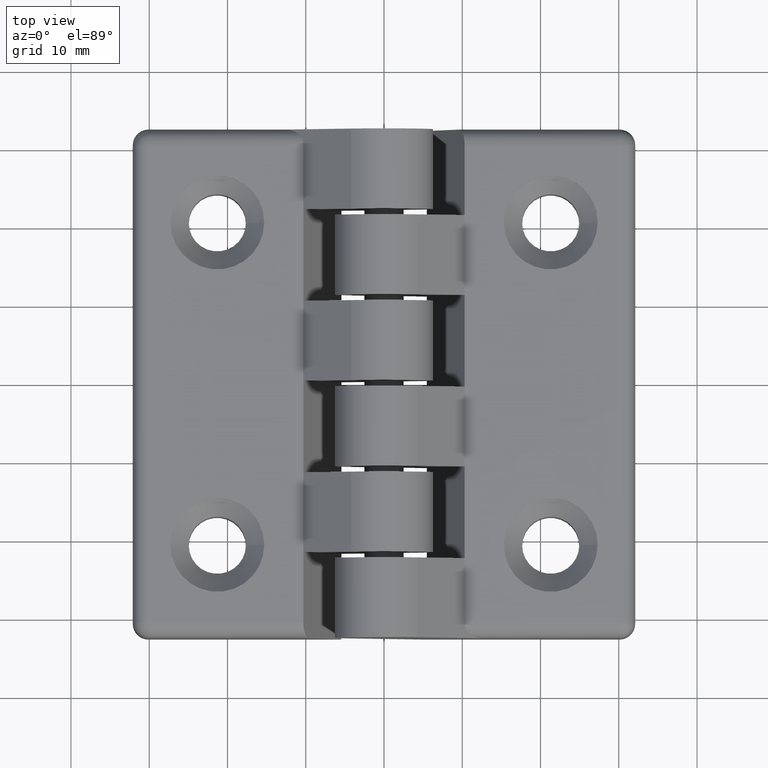
[diagram: clean part render]
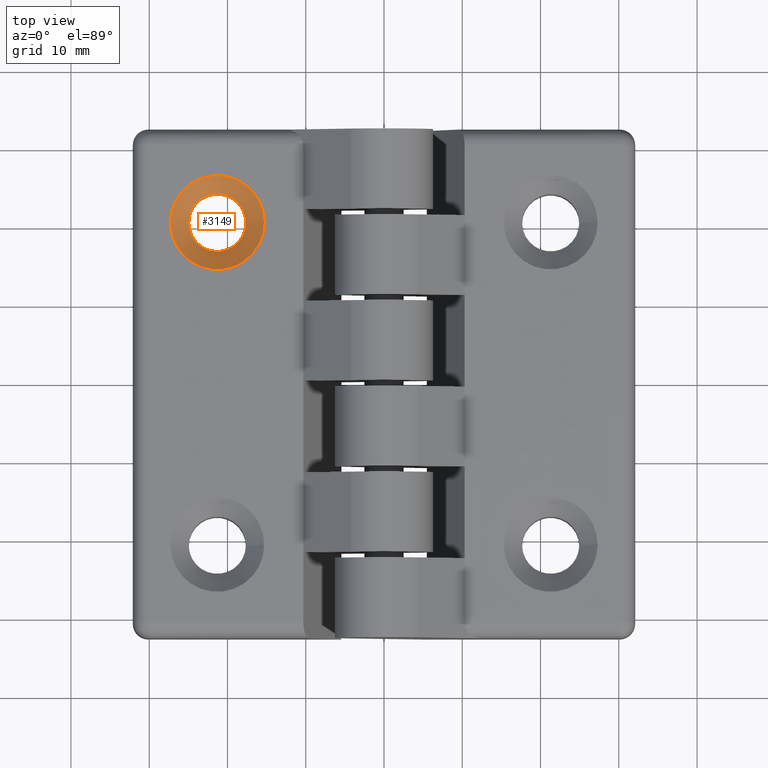
[diagram: same view with one face highlighted and labeled with its STEP entity id]
A machine part, top view. The second image highlights one B-rep face of the part: STEP entity #3149.
In plain terms, the highlighted conical surface has half-angle 45 deg.
Its self-contained STEP definition (entity closure, byte-faithful):
#38=CONICAL_SURFACE('',#3351,4.825,0.785398163397448);
#47=FACE_BOUND('',#430,.T.);
#243=FACE_OUTER_BOUND('',#429,.T.);
#429=EDGE_LOOP('',(#2258));
#430=EDGE_LOOP('',(#2259));
#651=CIRCLE('',#3352,3.65);
#652=CIRCLE('',#3353,6.);
#1475=VERTEX_POINT('',#4623);
#1476=VERTEX_POINT('',#4625);
#1787=EDGE_CURVE('',#1475,#1475,#651,.T.);
#1788=EDGE_CURVE('',#1476,#1476,#652,.T.);
#2258=ORIENTED_EDGE('',*,*,#1787,.F.);
#2259=ORIENTED_EDGE('',*,*,#1788,.F.);
#3149=ADVANCED_FACE('',(#243,#47),#38,.F.);
#3351=AXIS2_PLACEMENT_3D('',#4622,#3695,#3696);
#3352=AXIS2_PLACEMENT_3D('',#4624,#3697,#3698);
#3353=AXIS2_PLACEMENT_3D('',#4626,#3699,#3700);
#3695=DIRECTION('center_axis',(-2.80149588304563E-16,0.,1.));
#3696=DIRECTION('ref_axis',(1.,0.,2.80149588304563E-16));
#3697=DIRECTION('center_axis',(-2.80149588304563E-16,0.,1.));
#3698=DIRECTION('ref_axis',(1.,0.,2.80149588304563E-16));
#3699=DIRECTION('center_axis',(2.80149588304563E-16,0.,-1.));
#3700=DIRECTION('ref_axis',(-1.,0.,-2.80149588304563E-16));
#4622=CARTESIAN_POINT('Origin',(-21.3,20.6,-2.47499999998712));
#4623=CARTESIAN_POINT('',(-24.95,20.6,-3.64999999998712));
#4624=CARTESIAN_POINT('Origin',(-21.3,20.6,-3.64999999998712));
#4625=CARTESIAN_POINT('',(-15.3,20.6,-1.29999999998712));
#4626=CARTESIAN_POINT('Origin',(-21.3,20.6,-1.29999999998712));